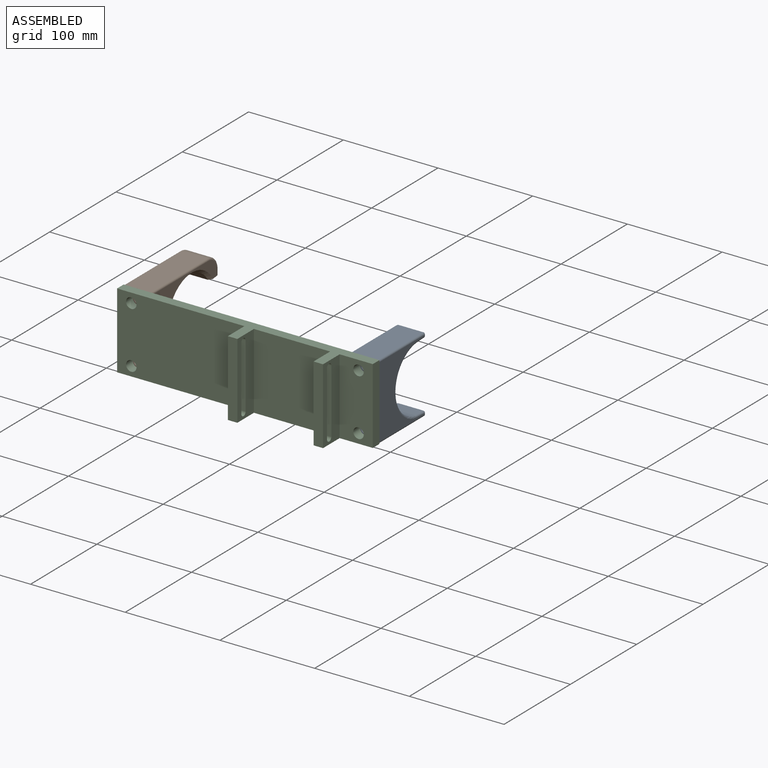
[diagram: assembled view]
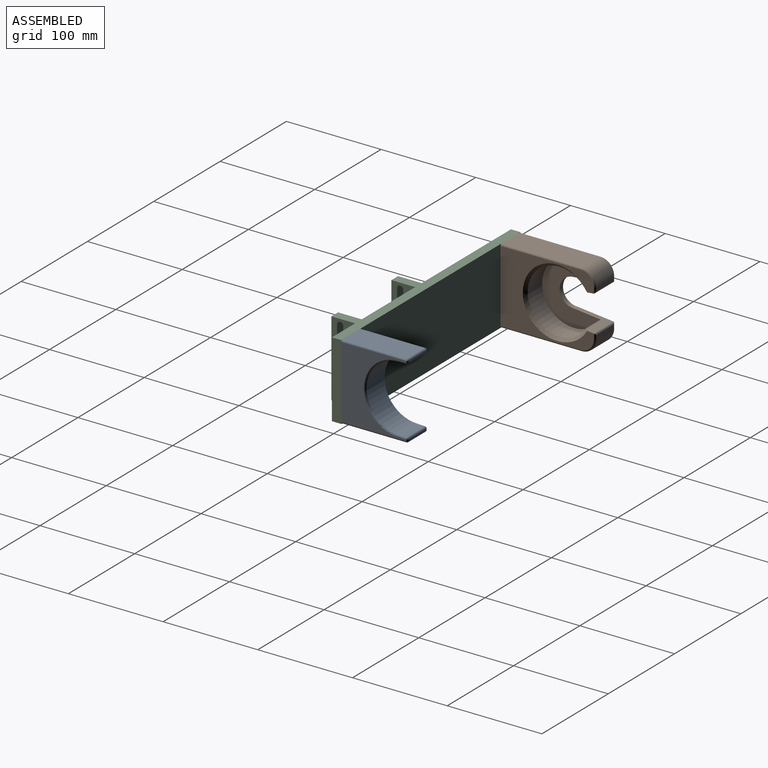
[diagram: assembled view, second angle]
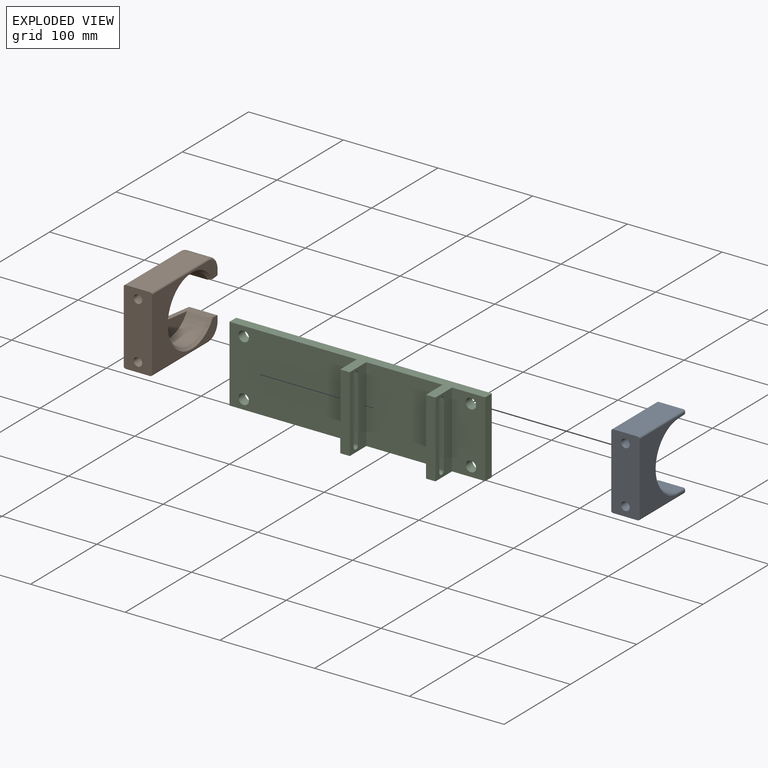
[diagram: exploded view]
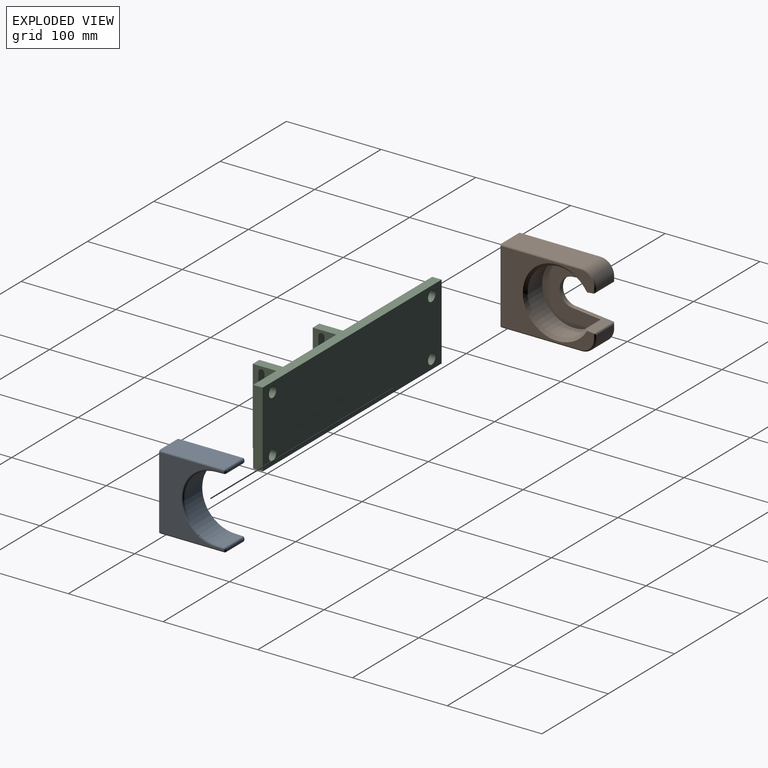
[diagram: exploded view, second angle]
ASSEMBLY  parts=3 mates=5
PART A: 40 faces, bbox 82.1x70x30 mm
  f0: plane 26x1.22mm, normal (0,1,0), area 31.7mm2, adj f24,f30,f31,f35
  f1: plane 76x68mm, normal (0,0,1), area 2489.1mm2, adj f4,f12,f17,f22,f26,f29,f32,f35
  f2: plane 76x68mm, normal (0,0,-1), area 2489.1mm2, adj f4,f10,f14,f19,f21,f23,f24,f25
  f3: plane 68x26mm, normal (-1,0,0), area 1768mm2, adj f4,f10,f12,f13
  f4: plane 80x30mm, normal (0,-1,0), area 2269.3mm2, adj f1,f2,f3,f5,f10,f12,f25,f32
  f5: plane 68x26mm, normal (1,0,0), area 1768mm2, adj f4,f25,f31,f32
  f6: plane 26x1.22mm, normal (0,1,0), area 31.7mm2, adj f13,f14,f17,f18
  f7: plane 26x8.07mm, normal (1,0.03,0), area 209.9mm2, adj f8,f18,f19,f22
  f8: cylinder r=34.5mm len=69mm, axis (0,0,1), area 2818mm2, adj f7,f9,f21,f26
  f9: plane 26x8.07mm, normal (-1,0.03,0), area 209.9mm2, adj f8,f23,f29,f30
  f10: cylinder r=2mm len=68mm, axis (0,-1,0), area 213.6mm2, adj f2,f3,f4,f11
  f11: sphere r=2mm, area 6.3mm2, adj f10,f13,f14
  f12: cylinder r=2mm len=68mm, axis (0,1,0), area 213.6mm2, adj f1,f3,f4,f15
  f13: cylinder r=2mm len=26mm, axis (0,0,-1), area 81.7mm2, adj f3,f6,f11,f15
  f14: cylinder r=2mm len=2mm, axis (-1,0,0), area 3.8mm2, adj f2,f6,f11,f16
  f15: sphere r=2mm, area 6.3mm2, adj f12,f13,f17
  f16: sphere r=2mm, area 6.1mm2, adj f14,f18,f19
  f17: cylinder r=2mm len=2mm, axis (1,0,0), area 3.8mm2, adj f1,f6,f15,f20
  f18: cylinder r=2mm len=26mm, axis (0,0,1), area 79.9mm2, adj f6,f7,f16,f20
  f19: cylinder r=2mm len=8.14mm, axis (0.03,-1,0), area 25.3mm2, adj f2,f7,f16,f21
  f20: sphere r=2mm, area 6.1mm2, adj f17,f18,f22
  f21: torus R=36.5mm, axis (0,0,1), area 347.6mm2, adj f2,f8,f19,f23
  f22: cylinder r=2mm len=8.14mm, axis (-0.03,1,0), area 25.3mm2, adj f1,f7,f20,f26
  f23: cylinder r=2mm len=8.14mm, axis (0.03,1,0), area 25.3mm2, adj f2,f9,f21,f27
  f24: cylinder r=2mm len=2mm, axis (-1,0,0), area 3.8mm2, adj f0,f2,f27,f28
  f25: cylinder r=2mm len=68mm, axis (0,1,0), area 213.6mm2, adj f2,f4,f5,f28
  f26: torus R=36.5mm, axis (0,0,1), area 347.6mm2, adj f1,f8,f22,f29
  f27: sphere r=2mm, area 6.1mm2, adj f23,f24,f30
  f28: sphere r=2mm, area 6.3mm2, adj f24,f25,f31
  f29: cylinder r=2mm len=8.14mm, axis (-0.03,-1,0), area 25.3mm2, adj f1,f9,f26,f33
  f30: cylinder r=2mm len=26mm, axis (0,0,-1), area 79.9mm2, adj f0,f9,f27,f33
  f31: cylinder r=2mm len=26mm, axis (0,0,1), area 81.7mm2, adj f0,f5,f28,f34
  f32: cylinder r=2mm len=68mm, axis (0,-1,0), area 213.6mm2, adj f1,f4,f5,f34
  f33: sphere r=2mm, area 6.1mm2, adj f29,f30,f35
  f34: sphere r=2mm, area 6.3mm2, adj f31,f32,f35
  f35: cylinder r=2mm len=2mm, axis (1,0,0), area 3.8mm2, adj f0,f1,f33,f34
  f36: cone r=0mm half-angle=59deg, axis (0,-1,0), area 74.2mm2, adj f37
  f37: cylinder r=4.5mm len=23mm, axis (0,-1,0), area 650.3mm2, adj f4,f36
  f38: cone r=0mm half-angle=59deg, axis (0,-1,0), area 74.2mm2, adj f39
  f39: cylinder r=4.5mm len=23mm, axis (0,-1,0), area 650.3mm2, adj f4,f38
PART B: 33 faces, bbox 82.5x101.2x30 mm
  f0: plane 26x4mm, normal (0,1,0), area 103.9mm2, adj f12,f17,f18,f19
  f1: plane 98x76mm, normal (0,0,1), area 3072.3mm2, adj f6,f9,f11,f14,f19,f20,f21,f24
  f2: plane 98x76mm, normal (0,0,-1), area 5730.3mm2, adj f6,f9,f10,f11,f15,f16,f17,f22
  f3: cylinder r=33.5mm len=67mm, axis (0,0,1), area 3796.1mm2, adj f4,f9,f11,f14
  f4: plane 67x61.77mm, normal (0,0,1), area 2112.7mm2, adj f3,f9,f10,f11
  f5: plane 85x26mm, normal (-1,0,0), area 2210mm2, adj f6,f13,f22,f24
  f6: plane 80x30mm, normal (0,-1,0), area 2269.3mm2, adj f1,f2,f5,f7,f15,f21,f22,f24
  f7: plane 85x26mm, normal (1,0,0), area 2210mm2, adj f6,f12,f15,f21
  f8: plane 26x4mm, normal (0,1,0), area 103.9mm2, adj f13,f25,f27,f28
  f9: plane 38.21x30mm, normal (0.99,0.1,0), area 436.9mm2, adj f1,f2,f3,f4,f10,f14,f25,f27
  f10: cylinder r=15mm len=30mm, axis (0,0,1), area 235.6mm2, adj f2,f4,f9,f11
  f11: plane 38.21x30mm, normal (-0.99,0.1,0), area 436.9mm2, adj f1,f2,f3,f4,f10,f14,f17,f18
  f12: cylinder r=15mm len=26mm, axis (0,0,1), area 612.6mm2, adj f0,f7,f16,f20
  f13: cylinder r=15mm len=26mm, axis (0,0,-1), area 612.6mm2, adj f5,f8,f23,f26
  f14: cone r=33.5mm half-angle=45deg, axis (0,0,1), area 771.1mm2, adj f1,f3,f9,f11
  f15: cylinder r=2mm len=85mm, axis (0,1,0), area 267mm2, adj f2,f6,f7,f16
  f16: torus R=13mm, axis (0,0,1), area 70.4mm2, adj f2,f12,f15,f17
  f17: cylinder r=2mm len=6.01mm, axis (-1,0,0), area 16.6mm2, adj f0,f2,f11,f16,f18
  f18: cylinder r=2mm len=29.98mm, axis (0,0,-1), area 83.4mm2, adj f0,f11,f17,f19
  f19: cylinder r=2mm len=6.01mm, axis (1,0,0), area 16.6mm2, adj f0,f1,f11,f18,f20
  f20: torus R=13mm, axis (0,0,1), area 70.4mm2, adj f1,f12,f19,f21
  f21: cylinder r=2mm len=85mm, axis (0,-1,0), area 267mm2, adj f1,f6,f7,f20
  f22: cylinder r=2mm len=85mm, axis (0,-1,0), area 267mm2, adj f2,f5,f6,f23
  f23: torus R=13mm, axis (0,0,1), area 70.4mm2, adj f2,f13,f22,f25
  f24: cylinder r=2mm len=85mm, axis (0,1,0), area 267mm2, adj f1,f5,f6,f26
  f25: cylinder r=2mm len=6.01mm, axis (-1,0,0), area 16.6mm2, adj f2,f8,f9,f23,f27
  f26: torus R=13mm, axis (0,0,1), area 70.4mm2, adj f1,f13,f24,f28
  f27: cylinder r=2mm len=29.98mm, axis (0,0,1), area 83.4mm2, adj f8,f9,f25,f28
  f28: cylinder r=2mm len=6.01mm, axis (1,0,0), area 16.6mm2, adj f1,f8,f9,f26,f27
  f29: cone r=0mm half-angle=59deg, axis (0,-1,0), area 74.2mm2, adj f30
  f30: cylinder r=4.5mm len=33mm, axis (0,-1,0), area 933.1mm2, adj f6,f29
  f31: cone r=0mm half-angle=59deg, axis (0,-1,0), area 74.2mm2, adj f32
  f32: cylinder r=4.5mm len=33mm, axis (0,-1,0), area 933.1mm2, adj f6,f31
PART C: 26 faces, bbox 270x35x80 mm
  f0: plane 80x25mm, normal (1,0,0), area 1524.8mm2, adj f5,f6,f8,f12,f18,f19,f20,f21
  f1: plane 80x25mm, normal (-1,0,0), area 1524.8mm2, adj f4,f6,f8,f12,f18,f19,f20,f21
  f2: plane 80x25mm, normal (-1,0,0), area 1524.8mm2, adj f6,f8,f10,f13,f14,f15,f16,f17
  f3: plane 80x25mm, normal (1,0,0), area 1524.8mm2, adj f4,f6,f8,f13,f14,f15,f16,f17
  f4: plane 80.5x80mm, normal (0,-1,0), area 6440mm2, adj f1,f3,f6,f8
  f5: plane 80x35mm, normal (0,-1,0), area 2609.9mm2, adj f0,f6,f8,f9,f23,f24
  f6: plane 270x35mm, normal (0,0,1), area 3200mm2, adj f0,f1,f2,f3,f4,f5,f7,f9
  f7: plane 80x10mm, normal (-1,0,0), area 800mm2, adj f6,f8,f10,f11
  f8: plane 270x35mm, normal (0,0,-1), area 3200mm2, adj f0,f1,f2,f3,f4,f5,f7,f9
  f9: plane 80x10mm, normal (1,0,0), area 800mm2, adj f5,f6,f8,f11
  f10: plane 134.5x80mm, normal (0,-1,0), area 10569.9mm2, adj f2,f6,f7,f8,f22,f25
  f11: plane 270x80mm, normal (0,1,0), area 21219.9mm2, adj f6,f7,f8,f9,f22,f23,f24,f25
  f12: plane 80x10mm, normal (0,-1,0), area 800mm2, adj f0,f1,f6,f8
  f13: plane 80x10mm, normal (0,-1,0), area 800mm2, adj f2,f3,f6,f8
  f14: cylinder r=3.25mm len=10mm, axis (1,0,0), area 102.1mm2, adj f2,f3,f15,f17
  f15: plane 68x10mm, normal (0,1,0), area 680mm2, adj f2,f3,f14,f16
  f16: cylinder r=3.25mm len=10mm, axis (1,0,0), area 102.1mm2, adj f2,f3,f15,f17
  f17: plane 68x10mm, normal (0,-1,0), area 680mm2, adj f2,f3,f14,f16
  f18: plane 68x10mm, normal (0,-1,0), area 680mm2, adj f0,f1,f19,f21
  f19: cylinder r=3.25mm len=10mm, axis (1,0,0), area 102.1mm2, adj f0,f1,f18,f20
  f20: plane 68x10mm, normal (0,1,0), area 680mm2, adj f0,f1,f19,f21
  f21: cylinder r=3.25mm len=10mm, axis (1,0,0), area 102.1mm2, adj f0,f1,f18,f20
  f22: cylinder r=5.5mm len=11mm, axis (0,-1,0), area 345.6mm2, adj f10,f11
  f23: cylinder r=5.5mm len=11mm, axis (0,-1,0), area 345.6mm2, adj f5,f11
  f24: cylinder r=5.5mm len=11mm, axis (0,-1,0), area 345.6mm2, adj f5,f11
  f25: cylinder r=5.5mm len=11mm, axis (0,-1,0), area 345.6mm2, adj f10,f11
PLACE A rot(axis=(0,1,0),90deg) t=(58.3,0,36.67)mm
PLACE B rot(axis=(0,1,0),90deg) t=(-181.7,0,36.67)mm
PLACE C at identity fixed
MATE planar B.f2 <-> C.f7  axis (-1,0,0) through (-181.7,0,-3.33)mm
MATE planar B.f6 <-> C.f11  axis (0,-1,0) through (-166.7,0,-3.33)mm
MATE planar A.f1 <-> C.f9  axis (1,0,0) through (88.3,0,-3.33)mm
MATE planar B.f7 <-> C.f8  axis (0,0,-1) through (-166.7,0,-43.33)mm
MATE planar A.f4 <-> C.f11  axis (0,-1,0) through (73.3,0,-3.33)mm
